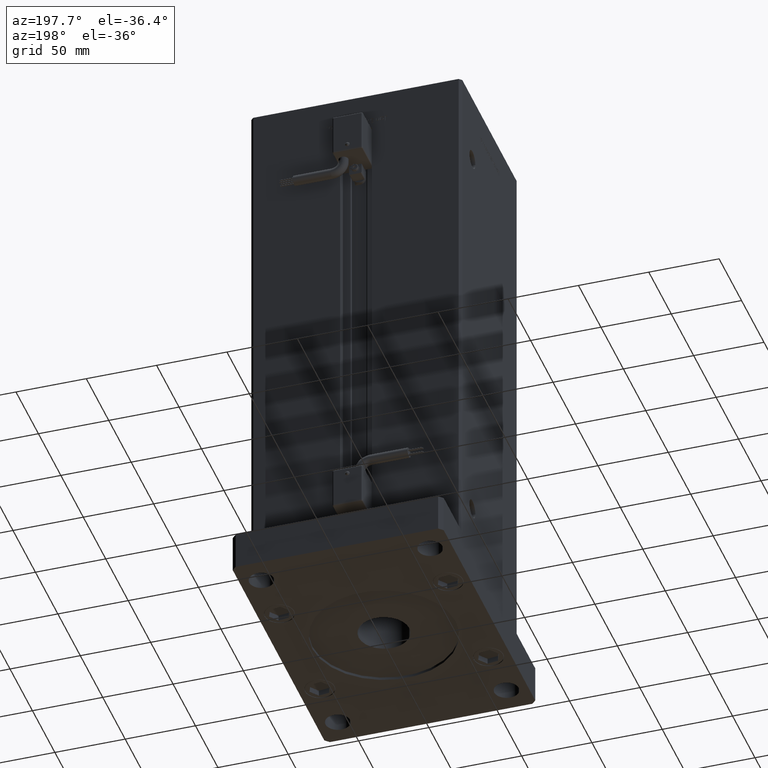
[diagram: clean part render]
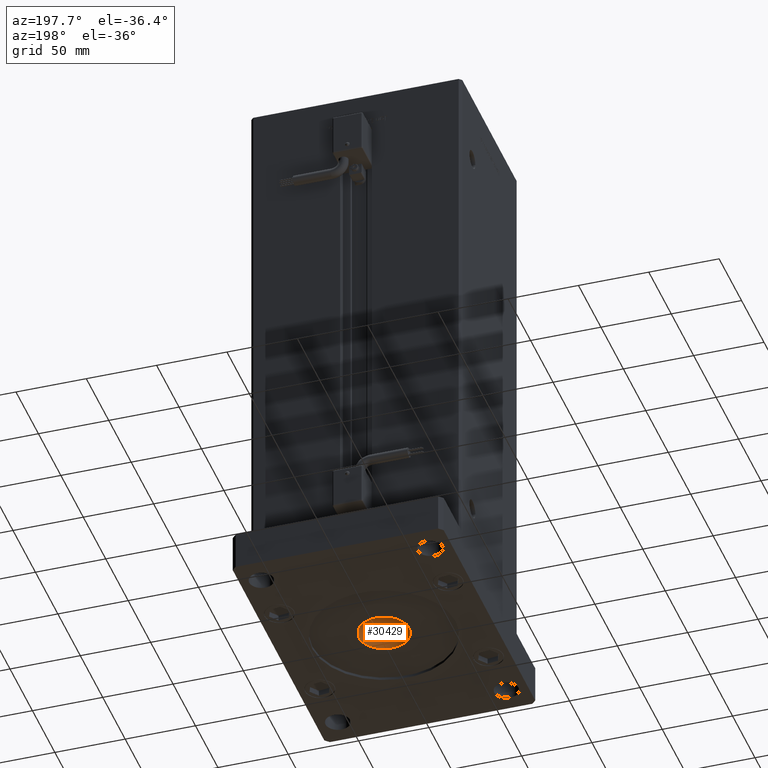
[diagram: same view with one face highlighted and labeled with its STEP entity id]
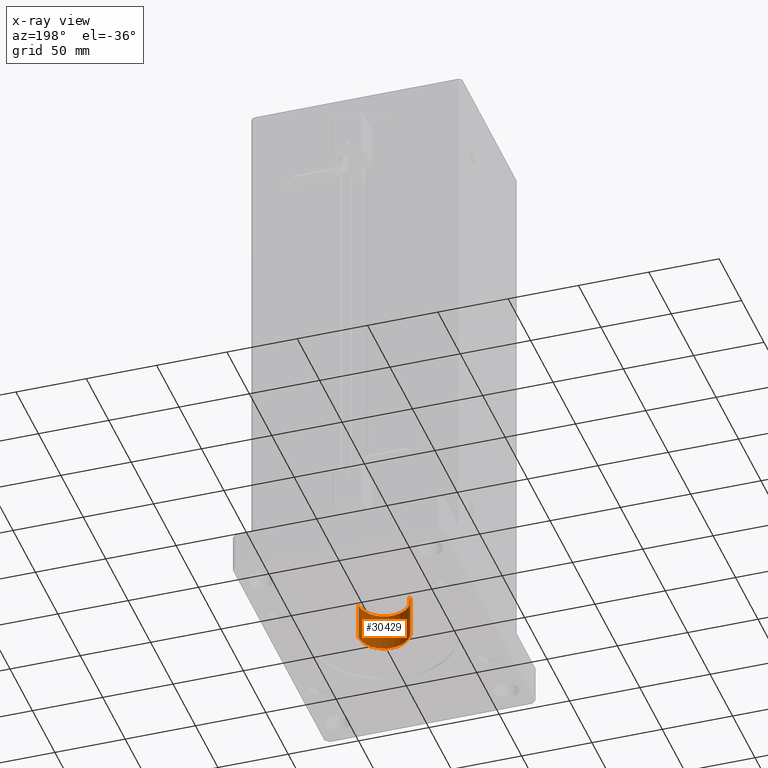
[diagram: x-ray of the same camera — body ghosted, the highlighted face saturated]
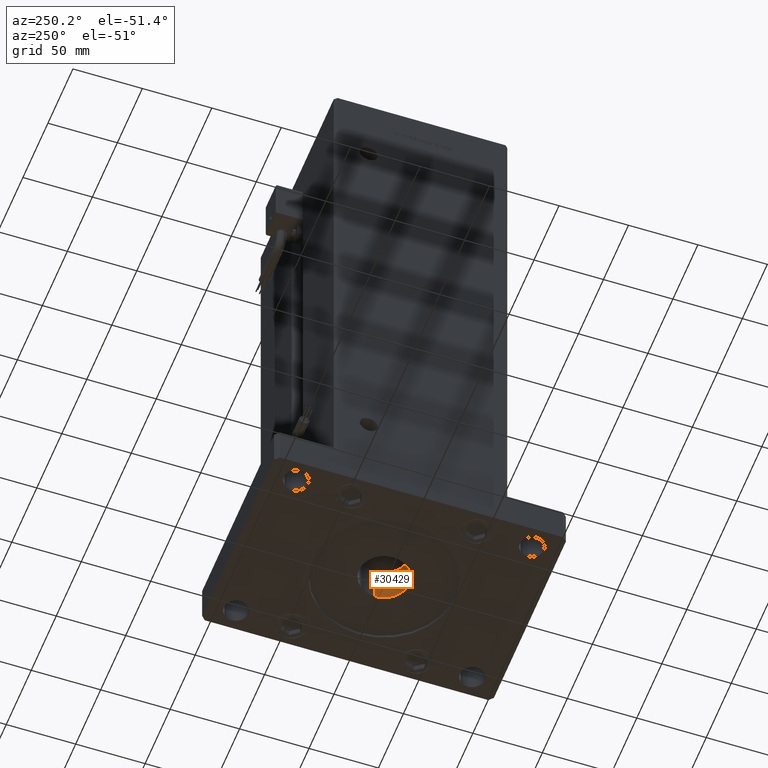
[diagram: same view with one face highlighted and labeled with its STEP entity id]
A machine part, auxiliary view. The second image highlights one B-rep face of the part: STEP entity #30429.
The next image is the same camera in x-ray: the body ghosted, the highlighted face saturated — about 0% of this face is hidden behind the body in this view.
A second angle (auxiliary view) of the same face is appended — the face is thin or edge-on in the first view.
In plain terms, the highlighted cylindrical surface (edge-blend (fillet) strip) has radius 18 mm, axis along (0, 0, 1).
Its self-contained STEP definition (entity closure, byte-faithful):
#223 = DIRECTION ( 'NONE',  ( -0.000000000000000000, -0.000000000000000000, 1.000000000000000000 ) ) ;
#5728 = CARTESIAN_POINT ( 'NONE',  ( 18.00000000000000000, 0.000000000000000000, 0.000000000000000000 ) ) ;
#6332 = ORIENTED_EDGE ( 'NONE', *, *, #8756, .T. ) ;
#7298 = CIRCLE ( 'NONE', #25609, 18.00000000000000000 ) ;
#7659 = AXIS2_PLACEMENT_3D ( 'NONE', #34301, #33740, #51198 ) ;
#8113 = CARTESIAN_POINT ( 'NONE',  ( 0.000000000000000000, 0.000000000000000000, 28.99999999999999645 ) ) ;
#8756 = EDGE_CURVE ( 'NONE', #23351, #10311, #7298, .T. ) ;
#9921 = VERTEX_POINT ( 'NONE', #21246 ) ;
#10311 = VERTEX_POINT ( 'NONE', #29912 ) ;
#17672 = EDGE_CURVE ( 'NONE', #9921, #23351, #20534, .T. ) ;
#20534 = LINE ( 'NONE', #33712, #46053 ) ;
#21246 = CARTESIAN_POINT ( 'NONE',  ( -18.00000000000000000, 2.204364238465235428E-15, 2.000000000000000000 ) ) ;
#23351 = VERTEX_POINT ( 'NONE', #48499 ) ;
#25407 = CYLINDRICAL_SURFACE ( 'NONE', #7659, 18.00000000000000000 ) ;
#25590 = DIRECTION ( 'NONE',  ( 0.000000000000000000, 0.000000000000000000, 1.000000000000000000 ) ) ;
#25609 = AXIS2_PLACEMENT_3D ( 'NONE', #8113, #25590, #43067 ) ;
#27786 = VECTOR ( 'NONE', #30668, 1000.000000000000000 ) ;
#27926 = CARTESIAN_POINT ( 'NONE',  ( 18.00000000000000000, 0.000000000000000000, 2.000000000000000000 ) ) ;
#29410 = DIRECTION ( 'NONE',  ( -0.000000000000000000, -0.000000000000000000, 1.000000000000000000 ) ) ;
#29857 = EDGE_CURVE ( 'NONE', #55665, #10311, #49269, .T. ) ;
#29912 = CARTESIAN_POINT ( 'NONE',  ( 18.00000000000000000, 0.000000000000000000, 28.99999999999999645 ) ) ;
#30429 = ADVANCED_FACE ( 'NONE', ( #51482 ), #25407, .F. ) ;
#30668 = DIRECTION ( 'NONE',  ( -0.000000000000000000, -0.000000000000000000, 1.000000000000000000 ) ) ;
#33712 = CARTESIAN_POINT ( 'NONE',  ( -18.00000000000000000, 2.204364238465235428E-15, 0.000000000000000000 ) ) ;
#33740 = DIRECTION ( 'NONE',  ( -0.000000000000000000, -0.000000000000000000, 1.000000000000000000 ) ) ;
#34088 = DIRECTION ( 'NONE',  ( -1.000000000000000000, 0.000000000000000000, 0.000000000000000000 ) ) ;
#34301 = CARTESIAN_POINT ( 'NONE',  ( 0.000000000000000000, 0.000000000000000000, 0.000000000000000000 ) ) ;
#35875 = ORIENTED_EDGE ( 'NONE', *, *, #17672, .T. ) ;
#36855 = EDGE_CURVE ( 'NONE', #9921, #55665, #39009, .T. ) ;
#38418 = EDGE_LOOP ( 'NONE', ( #53372, #35875, #6332, #49364 ) ) ;
#39009 = CIRCLE ( 'NONE', #49059, 18.00000000000000000 ) ;
#43067 = DIRECTION ( 'NONE',  ( 1.000000000000000000, 0.000000000000000000, 0.000000000000000000 ) ) ;
#46053 = VECTOR ( 'NONE', #29410, 1000.000000000000000 ) ;
#47243 = CARTESIAN_POINT ( 'NONE',  ( 0.000000000000000000, 0.000000000000000000, 2.000000000000000000 ) ) ;
#48499 = CARTESIAN_POINT ( 'NONE',  ( -18.00000000000000000, 2.204364238465235428E-15, 28.99999999999999645 ) ) ;
#49059 = AXIS2_PLACEMENT_3D ( 'NONE', #47243, #223, #34088 ) ;
#49269 = LINE ( 'NONE', #5728, #27786 ) ;
#49364 = ORIENTED_EDGE ( 'NONE', *, *, #29857, .F. ) ;
#51198 = DIRECTION ( 'NONE',  ( 1.000000000000000000, 0.000000000000000000, 0.000000000000000000 ) ) ;
#51482 = FACE_OUTER_BOUND ( 'NONE', #38418, .T. ) ;
#53372 = ORIENTED_EDGE ( 'NONE', *, *, #36855, .F. ) ;
#55665 = VERTEX_POINT ( 'NONE', #27926 ) ;